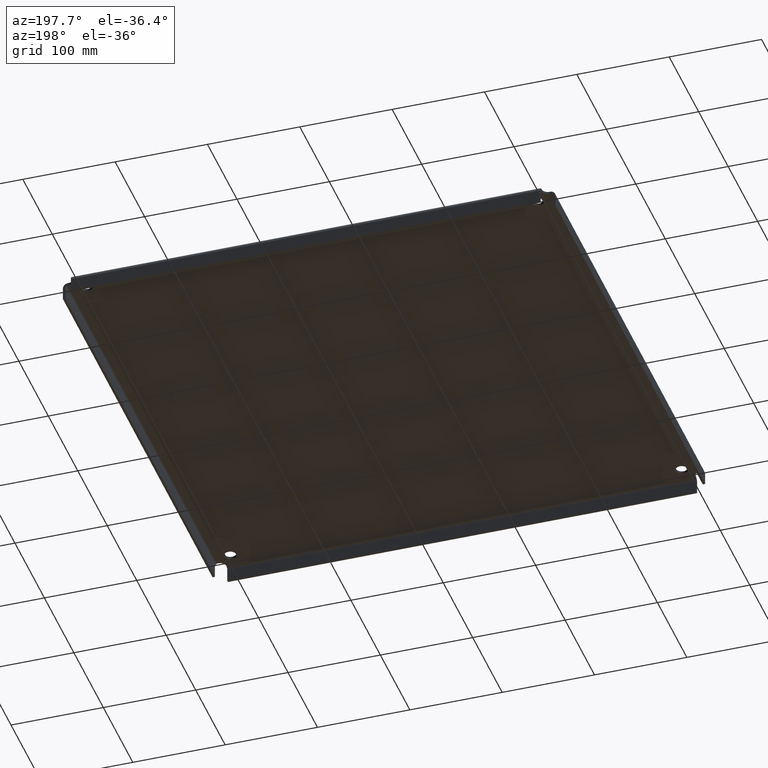
[diagram: clean part render]
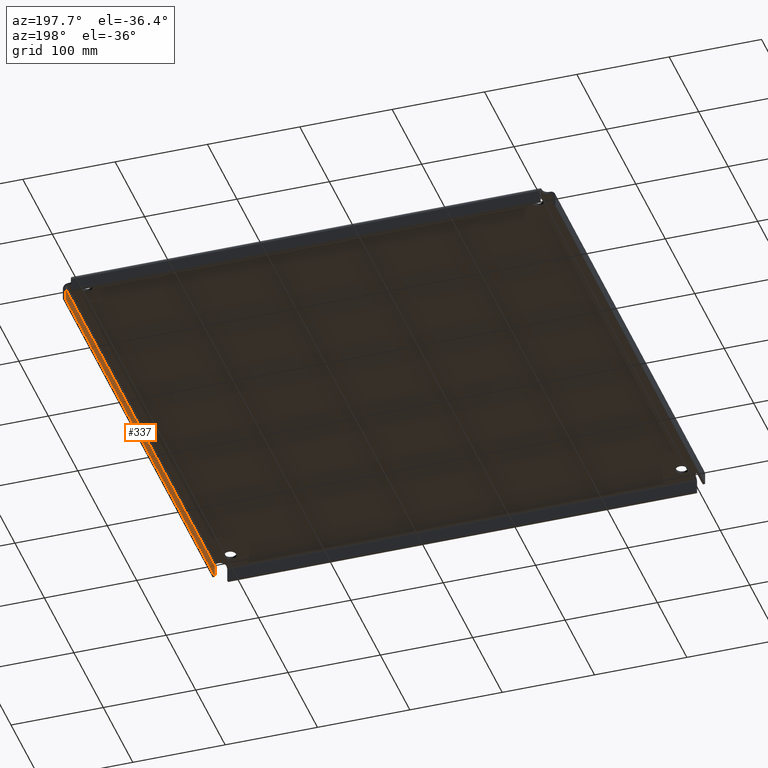
[diagram: same view with one face highlighted and labeled with its STEP entity id]
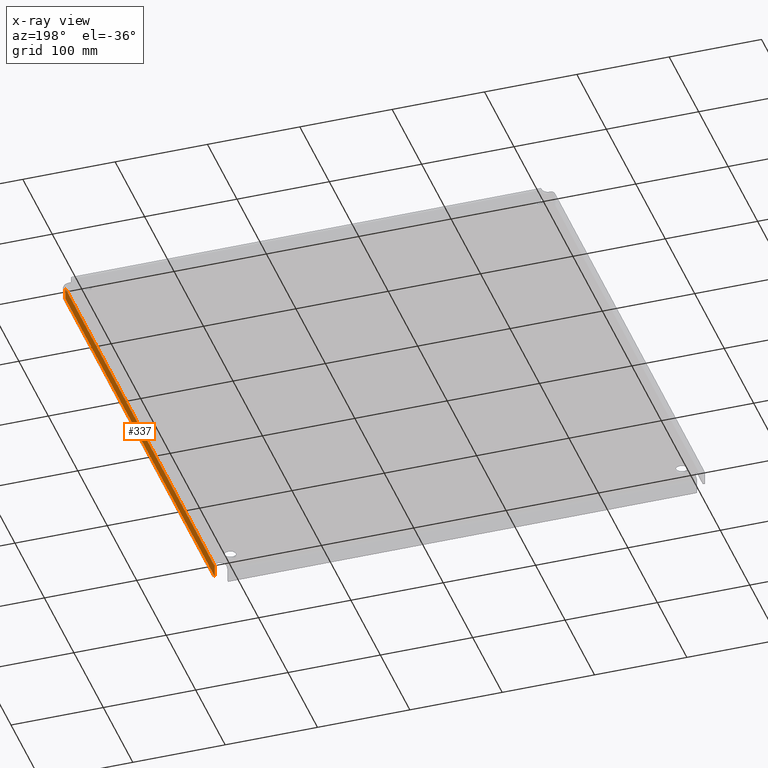
[diagram: x-ray of the same camera — body ghosted, the highlighted face saturated]
A machine part, auxiliary view. The second image highlights one B-rep face of the part: STEP entity #337.
The next image is the same camera in x-ray: the body ghosted, the highlighted face saturated — about 0% of this face is hidden behind the body in this view.
In plain terms, the highlighted planar face has unit normal (1, 0, -0).
Its self-contained STEP definition (entity closure, byte-faithful):
#53 = VERTEX_POINT ( 'NONE', #365 ) ;
#71 = AXIS2_PLACEMENT_3D ( 'NONE', #648, #1013, #304 ) ;
#113 = CARTESIAN_POINT ( 'NONE',  ( -2.916296614247001700, -44.61211278189821900, 0.2708774962825973300 ) ) ;
#174 = CARTESIAN_POINT ( 'NONE',  ( -2.916296614247008400, -24.61211278189821200, 0.2708774962825973300 ) ) ;
#304 = DIRECTION ( 'NONE',  ( -3.152132300381841800E-016, 1.000000000000000000, 0.0000000000000000000 ) ) ;
#328 = ORIENTED_EDGE ( 'NONE', *, *, #523, .T. ) ;
#337 = ADVANCED_FACE ( 'NONE', ( #785 ), #1001, .F. ) ;
#338 = EDGE_CURVE ( 'NONE', #1155, #702, #1366, .T. ) ;
#365 = CARTESIAN_POINT ( 'NONE',  ( -2.916296614247008400, -24.61211278189821200, -29.89476460107778500 ) ) ;
#417 = ORIENTED_EDGE ( 'NONE', *, *, #491, .T. ) ;
#444 = VECTOR ( 'NONE', #514, 39.37007874015748100 ) ;
#456 = CARTESIAN_POINT ( 'NONE',  ( -2.916296614247008400, -24.21211278189821300, -29.89476460107778500 ) ) ;
#469 = VECTOR ( 'NONE', #1357, 39.37007874015748100 ) ;
#491 = EDGE_CURVE ( 'NONE', #1059, #1155, #1150, .T. ) ;
#514 = DIRECTION ( 'NONE',  ( 0.0000000000000000000, 0.0000000000000000000, -1.000000000000000000 ) ) ;
#522 = LINE ( 'NONE', #456, #1114 ) ;
#523 = EDGE_CURVE ( 'NONE', #53, #1059, #522, .T. ) ;
#534 = CARTESIAN_POINT ( 'NONE',  ( -2.916296614247008400, -24.61211278189821200, -29.37476460107778600 ) ) ;
#557 = EDGE_LOOP ( 'NONE', ( #417, #784, #968, #328 ) ) ;
#569 = DIRECTION ( 'NONE',  ( 3.152132300381841800E-016, -1.000000000000000000, 0.0000000000000000000 ) ) ;
#648 = CARTESIAN_POINT ( 'NONE',  ( -2.916296614247008400, -24.21211278189821300, 0.2708774962825973300 ) ) ;
#691 = DIRECTION ( 'NONE',  ( 0.0000000000000000000, -0.0000000000000000000, 1.000000000000000000 ) ) ;
#702 = VERTEX_POINT ( 'NONE', #1173 ) ;
#784 = ORIENTED_EDGE ( 'NONE', *, *, #338, .T. ) ;
#785 = FACE_OUTER_BOUND ( 'NONE', #557, .T. ) ;
#837 = VECTOR ( 'NONE', #691, 39.37007874015748100 ) ;
#900 = CARTESIAN_POINT ( 'NONE',  ( -2.916296614247001700, -44.61211278189821900, -29.37476460107778600 ) ) ;
#968 = ORIENTED_EDGE ( 'NONE', *, *, #1458, .T. ) ;
#1001 = PLANE ( 'NONE',  #71 ) ;
#1013 = DIRECTION ( 'NONE',  ( 1.000000000000000000, 3.152132300381841800E-016, -0.0000000000000000000 ) ) ;
#1059 = VERTEX_POINT ( 'NONE', #1123 ) ;
#1114 = VECTOR ( 'NONE', #569, 39.37007874015748100 ) ;
#1123 = CARTESIAN_POINT ( 'NONE',  ( -2.916296614247001700, -44.61211278189821900, -29.89476460107778500 ) ) ;
#1150 = LINE ( 'NONE', #113, #837 ) ;
#1155 = VERTEX_POINT ( 'NONE', #900 ) ;
#1173 = CARTESIAN_POINT ( 'NONE',  ( -2.916296614247008400, -24.61211278189821200, -29.37476460107778600 ) ) ;
#1357 = DIRECTION ( 'NONE',  ( -3.152132300381841800E-016, 1.000000000000000000, -0.0000000000000000000 ) ) ;
#1366 = LINE ( 'NONE', #534, #469 ) ;
#1376 = LINE ( 'NONE', #174, #444 ) ;
#1458 = EDGE_CURVE ( 'NONE', #702, #53, #1376, .T. ) ;